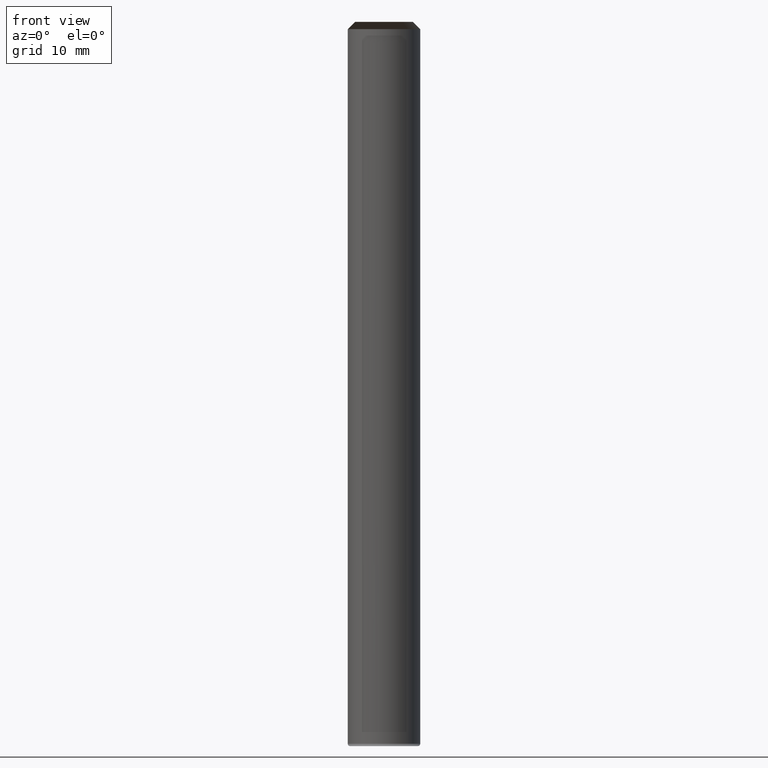
[diagram: clean part render]
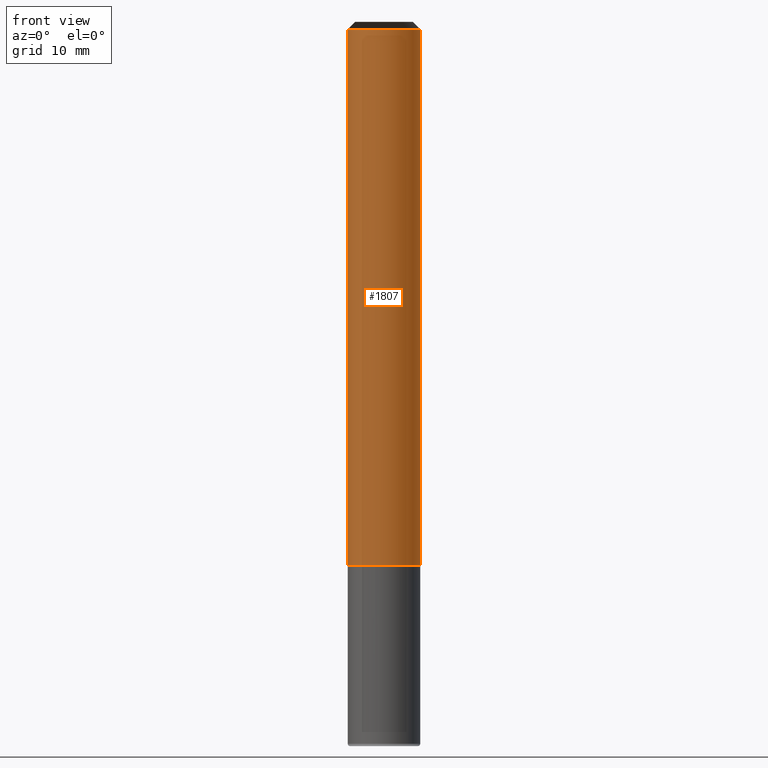
[diagram: same view with one face highlighted and labeled with its STEP entity id]
A machine part, front view. The second image highlights one B-rep face of the part: STEP entity #1807.
In plain terms, the highlighted face is a freeform B-spline surface patch.
Its self-contained STEP definition (entity closure, byte-faithful):
#1502=CARTESIAN_POINT('',(3.0,0.0,0.0));
#1506=CARTESIAN_POINT('',(-3.0,0.0,0.0));
#1523=CARTESIAN_POINT('',(-3.0,-3.0,0.0));
#1524=CARTESIAN_POINT('',(0.0,-3.0,0.0));
#1525=CARTESIAN_POINT('',(3.0,-3.0,0.0));
#1526=CARTESIAN_POINT('',(3.0,0.0,44.4));
#1530=CARTESIAN_POINT('',(-3.0,0.0,44.4));
#1537=CARTESIAN_POINT('',(-3.0,-3.0,44.4));
#1538=CARTESIAN_POINT('',(0.0,-3.0,44.4));
#1539=CARTESIAN_POINT('',(3.0,-3.0,44.4));
#1788=(
BOUNDED_SURFACE()
B_SPLINE_SURFACE(1,2,(
(#1506,#1523,#1524,#1525,#1502),
(#1530,#1537,#1538,#1539,#1526)
), .UNSPECIFIED.,.F.,.F.,.F.)
B_SPLINE_SURFACE_WITH_KNOTS((2,2),(3,2,3),(
0.0,1.0),(
0.0,0.5,1.0), .UNSPECIFIED.)
GEOMETRIC_REPRESENTATION_ITEM()
RATIONAL_B_SPLINE_SURFACE(((1.0,0.707106781187,1.0,0.707106781187,1.0),
(1.0,0.707106781187,1.0,0.707106781187,1.0)
))
REPRESENTATION_ITEM('')
SURFACE()
);
#1789=(
BOUNDED_CURVE()
B_SPLINE_CURVE(1,(#1530,#1506),.UNSPECIFIED.,.F.,.F.)
B_SPLINE_CURVE_WITH_KNOTS((2,2),
(0.0,1.0),.UNSPECIFIED.)
CURVE()
GEOMETRIC_REPRESENTATION_ITEM()
RATIONAL_B_SPLINE_CURVE((1.0,1.0))
REPRESENTATION_ITEM('')
);
#1790=(
BOUNDED_CURVE()
B_SPLINE_CURVE(2,(#1506,#1523,#1524,#1525,#1502),.UNSPECIFIED.,.F.,.F.)
B_SPLINE_CURVE_WITH_KNOTS((3,2,3),
(0.0,0.5,1.0),.UNSPECIFIED.)
CURVE()
GEOMETRIC_REPRESENTATION_ITEM()
RATIONAL_B_SPLINE_CURVE((1.0,0.707106781187,1.0,0.707106781187,1.0))
REPRESENTATION_ITEM('')
);
#1791=(
BOUNDED_CURVE()
B_SPLINE_CURVE(1,(#1502,#1526),.UNSPECIFIED.,.F.,.F.)
B_SPLINE_CURVE_WITH_KNOTS((2,2),
(0.0,1.0),.UNSPECIFIED.)
CURVE()
GEOMETRIC_REPRESENTATION_ITEM()
RATIONAL_B_SPLINE_CURVE((1.0,1.0))
REPRESENTATION_ITEM('')
);
#1792=(
BOUNDED_CURVE()
B_SPLINE_CURVE(2,(#1526,#1539,#1538,#1537,#1530),.UNSPECIFIED.,.F.,.F.)
B_SPLINE_CURVE_WITH_KNOTS((3,2,3),
(0.0,0.5,1.0),.UNSPECIFIED.)
CURVE()
GEOMETRIC_REPRESENTATION_ITEM()
RATIONAL_B_SPLINE_CURVE((1.0,0.707106781187,1.0,0.707106781187,1.0))
REPRESENTATION_ITEM('')
);
#1793=VERTEX_POINT('',#1502);
#1794=VERTEX_POINT('',#1506);
#1795=VERTEX_POINT('',#1526);
#1796=VERTEX_POINT('',#1530);
#1797=EDGE_CURVE('',#1796,#1794,#1789,.T.);
#1798=EDGE_CURVE('',#1794,#1793,#1790,.T.);
#1799=EDGE_CURVE('',#1793,#1795,#1791,.T.);
#1800=EDGE_CURVE('',#1795,#1796,#1792,.T.);
#1801=ORIENTED_EDGE('',*,*,#1797,.T.);
#1802=ORIENTED_EDGE('',*,*,#1798,.T.);
#1803=ORIENTED_EDGE('',*,*,#1799,.T.);
#1804=ORIENTED_EDGE('',*,*,#1800,.T.);
#1805=EDGE_LOOP('',(#1801,#1802,#1803,#1804));
#1806=FACE_OUTER_BOUND('',#1805,.T.);
#1807=ADVANCED_FACE('',(#1806),#1788,.T.);